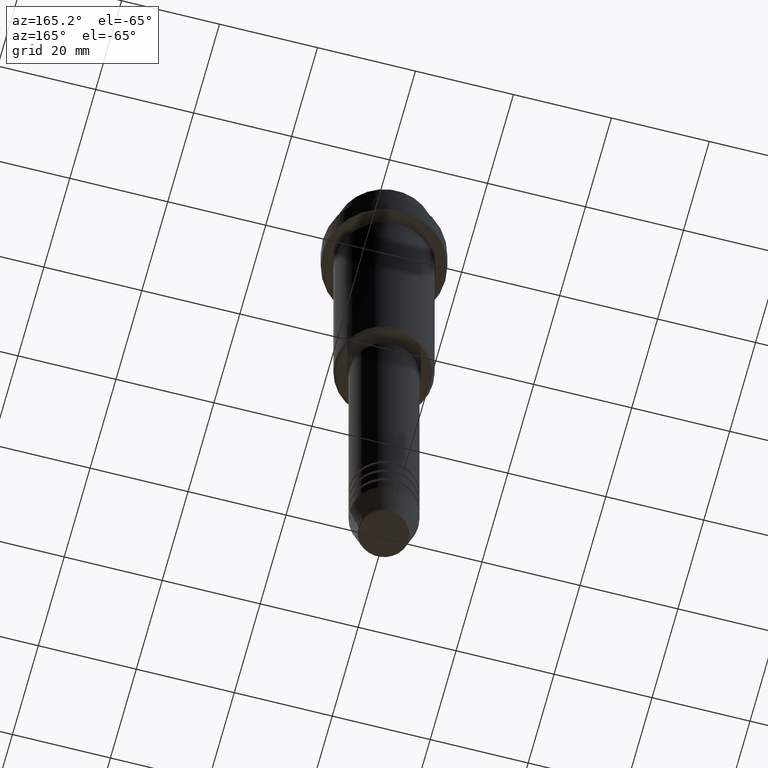
[diagram: clean part render]
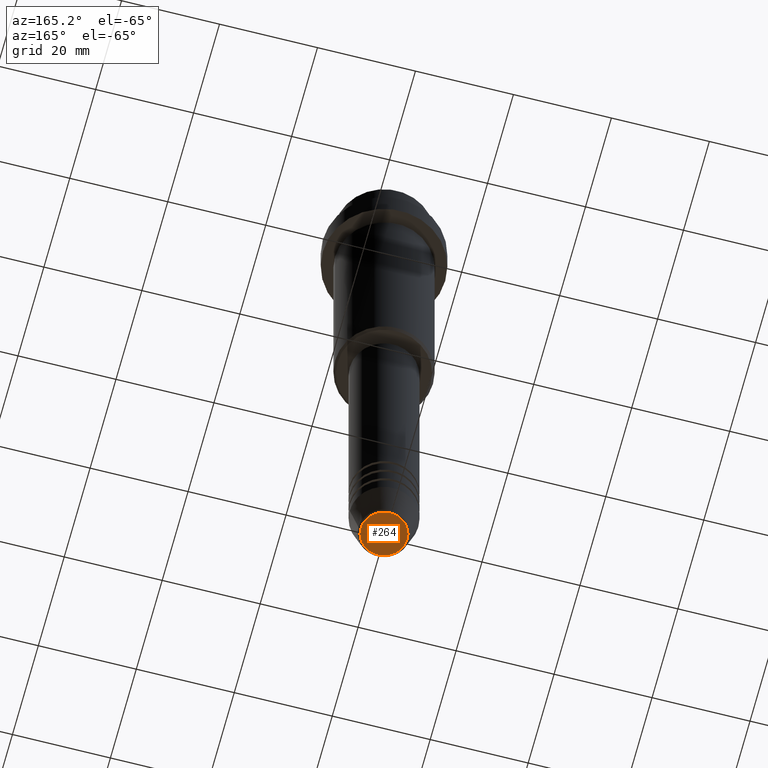
[diagram: same view with one face highlighted and labeled with its STEP entity id]
A machine part, auxiliary view. The second image highlights one B-rep face of the part: STEP entity #264.
In plain terms, the highlighted planar face has unit normal (0, -0, 1).
Its self-contained STEP definition (entity closure, byte-faithful):
#16 = DIRECTION ( 'NONE',  ( 0.000000000000000000, 0.000000000000000000, -1.000000000000000000 ) ) ;
#125 = ORIENTED_EDGE ( 'NONE', *, *, #589, .T. ) ;
#238 = FACE_OUTER_BOUND ( 'NONE', #400, .T. ) ;
#248 = VERTEX_POINT ( 'NONE', #792 ) ;
#253 = CARTESIAN_POINT ( 'NONE',  ( 0.000000000000000000, 0.000000000000000000, -140.0000000000000000 ) ) ;
#262 = DIRECTION ( 'NONE',  ( 1.000000000000000000, 0.000000000000000000, 0.000000000000000000 ) ) ;
#264 = ADVANCED_FACE ( 'NONE', ( #238 ), #884, .F. ) ;
#355 = CARTESIAN_POINT ( 'NONE',  ( 0.000000000000000000, 0.000000000000000000, -140.0000000000000000 ) ) ;
#370 = CIRCLE ( 'NONE', #983, 4.740692158992658278 ) ;
#400 = EDGE_LOOP ( 'NONE', ( #125, #1161 ) ) ;
#452 = DIRECTION ( 'NONE',  ( 1.000000000000000000, 0.000000000000000000, 0.000000000000000000 ) ) ;
#540 = CARTESIAN_POINT ( 'NONE',  ( 0.000000000000000000, 0.000000000000000000, -140.0000000000000000 ) ) ;
#552 = AXIS2_PLACEMENT_3D ( 'NONE', #253, #696, #679 ) ;
#589 = EDGE_CURVE ( 'NONE', #248, #699, #370, .T. ) ;
#678 = EDGE_CURVE ( 'NONE', #699, #248, #758, .T. ) ;
#679 = DIRECTION ( 'NONE',  ( 1.000000000000000000, 0.000000000000000000, 0.000000000000000000 ) ) ;
#684 = CARTESIAN_POINT ( 'NONE',  ( -4.740692158992658278, 6.101402971097982718E-16, -140.0000000000000000 ) ) ;
#696 = DIRECTION ( 'NONE',  ( 0.000000000000000000, -0.000000000000000000, 1.000000000000000000 ) ) ;
#699 = VERTEX_POINT ( 'NONE', #684 ) ;
#758 = CIRCLE ( 'NONE', #1054, 4.740692158992658278 ) ;
#792 = CARTESIAN_POINT ( 'NONE',  ( 4.740692158992658278, 0.000000000000000000, -140.0000000000000000 ) ) ;
#884 = PLANE ( 'NONE',  #552 ) ;
#983 = AXIS2_PLACEMENT_3D ( 'NONE', #540, #16, #452 ) ;
#1054 = AXIS2_PLACEMENT_3D ( 'NONE', #355, #1141, #262 ) ;
#1141 = DIRECTION ( 'NONE',  ( 0.000000000000000000, 0.000000000000000000, -1.000000000000000000 ) ) ;
#1161 = ORIENTED_EDGE ( 'NONE', *, *, #678, .T. ) ;